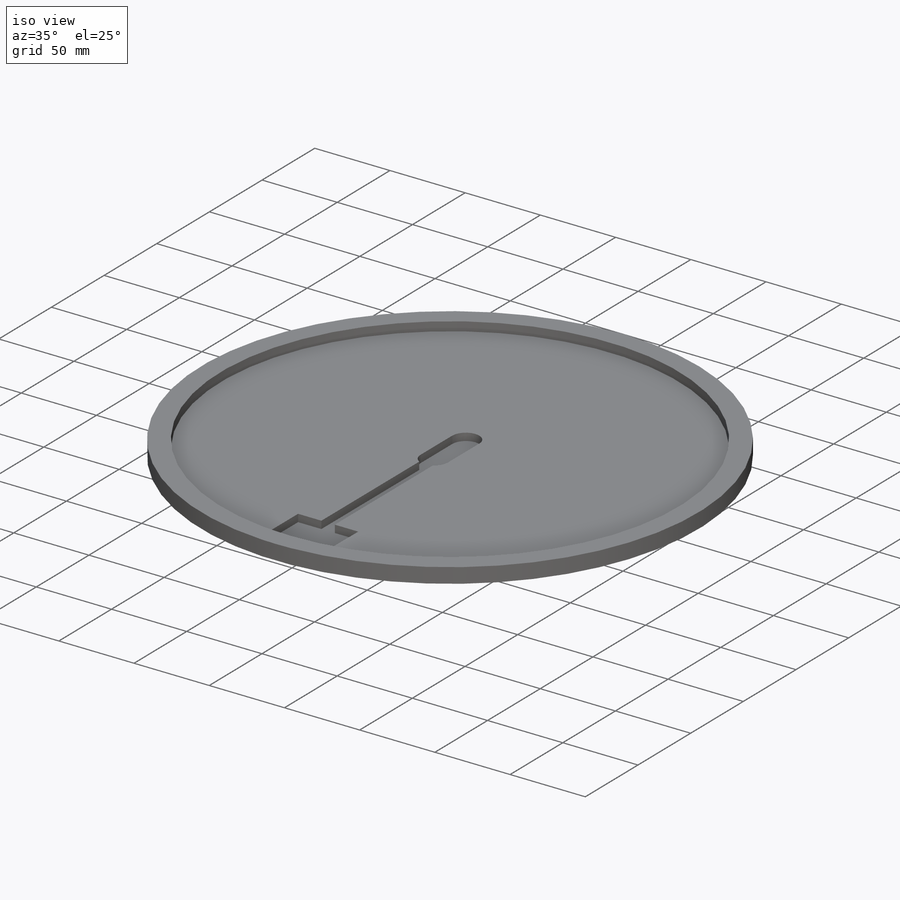
[diagram: iso view]
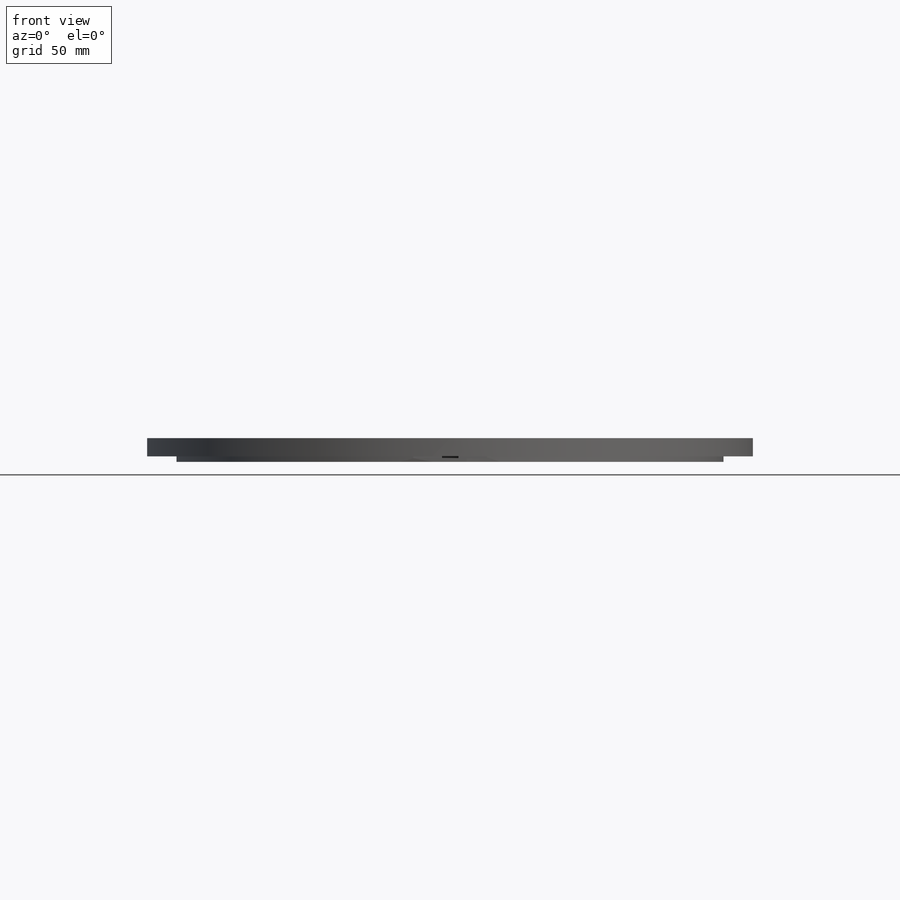
[diagram: front view]
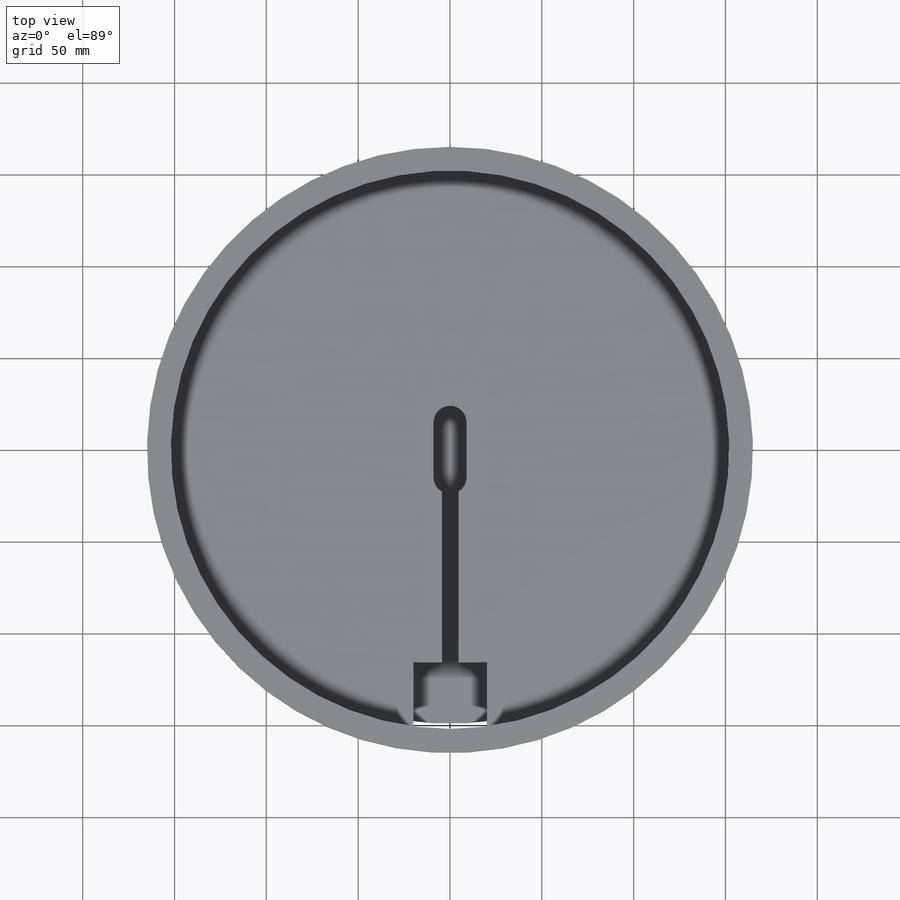
[diagram: top view]
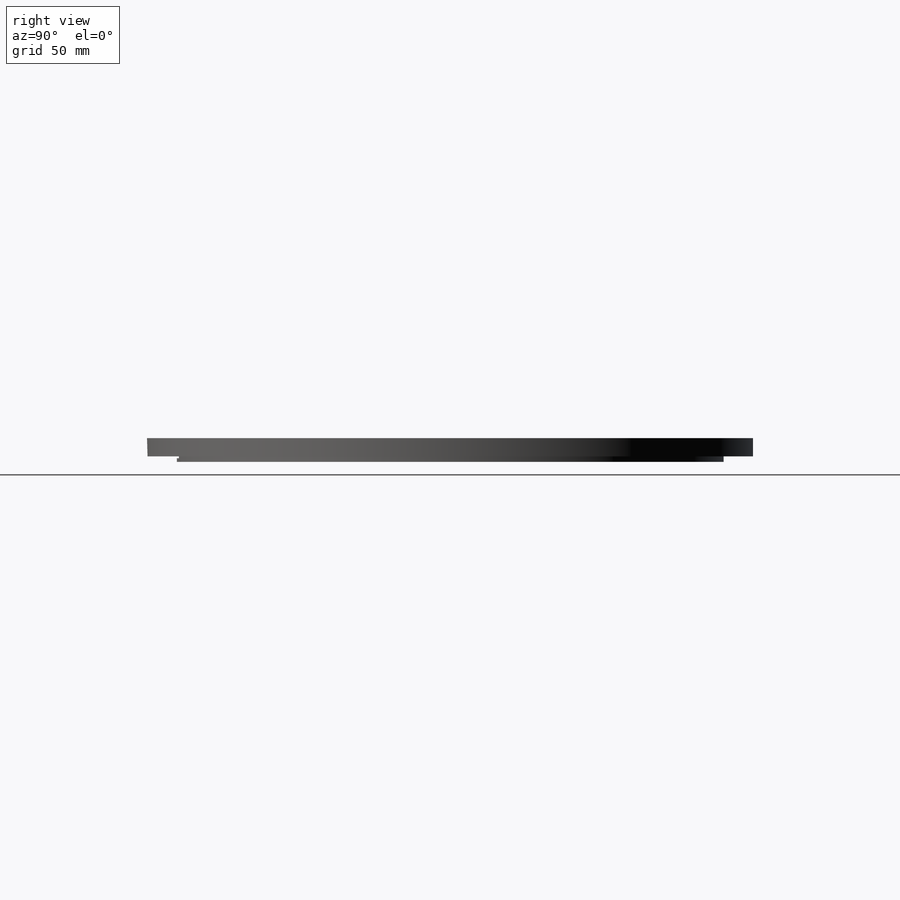
[diagram: right view]
SOLIDWORKS PART (.sldprt)
format: sldprt  version: not decoded by parser v0  size: 473,088 bytes
history: native  units: mm
features: sketch x5, cut_extrude x3, material x1, extrude x1 (+13 scaffold rows collapsed)
feature tree (23):
  scaffold x13  (default folders/planes/origin — collapsed)
  material  "Material <not specified>"
  sketch  "Sketch1"  dims[D1=300.0mm]
  sketch  "Sketch2"  dims[D1=15.0mm]
  extrude  "Boss-Extrude1"  Depth=13mm
  sketch  "Sketch3"  dims[D1=1.0mm]
  cut_extrude  "Cut-Extrude1"  Depth=3mm
  sketch  "Sketch4"  dims[D1=2.0mm]
  cut_extrude  "Cut-Extrude2"  Depth=6mm
  sketch  "Sketch5"  dims[D1=18.0mm D2=30.0mm D3=9.0mm D4=40.0mm D5=35.0mm]
  cut_extrude  "Cut-Extrude3"  Depth=5mm
decode coverage: 9 of 9 modeling features carry decoded parameters
note: suppression state not decoded; provenance and decode notes live in map.json
